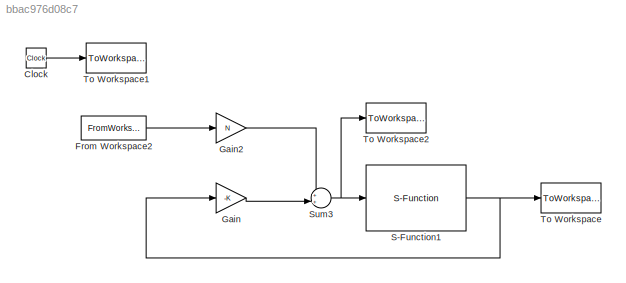
MODEL slx_bbac976d08c7
KIND model
BLOCK [Clock] Clock
BLOCK [FromWorkspace] From Workspace2
  SampleTime = 0
  VariableName = setPos
  ZeroCross = on
BLOCK [Gain] Gain
  Gain = -K
  Multiplication = Matrix(K*u)
  OutDataTypeStr = Inherit: Inherit via internal rule
  ParamDataTypeStr = Inherit: Inherit via internal rule
  SaturateOnIntegerOverflow = off
BLOCK [Gain] Gain2
  Gain = N
  OutDataTypeStr = Inherit: Inherit via internal rule
  ParamDataTypeStr = Inherit: Inherit via internal rule
  SaturateOnIntegerOverflow = off
BLOCK [S-Function] S-Function1
  EnableBusSupport = off
  FunctionName = objModel
  Parameters = state0,params,modelSelect
  Ports = [1, 1]
BLOCK [Sum] Sum3
  IconShape = round
  InputSameDT = off
  Inputs = ++|
  OutDataTypeStr = Inherit: Inherit via internal rule
  Ports = [2, 1]
  SaturateOnIntegerOverflow = off
BLOCK [ToWorkspace] To Workspace
  MaxDataPoints = inf
  Ports = [1]
  SampleTime = -1
  VariableName = y
BLOCK [ToWorkspace] To Workspace1
  MaxDataPoints = inf
  Ports = [1]
  SampleTime = -1
  VariableName = t
BLOCK [ToWorkspace] To Workspace2
  MaxDataPoints = inf
  Ports = [1]
  SampleTime = -1
  VariableName = u
LINE Clock:1 -> To Workspace1:1
LINE From Workspace2:1 -> Gain2:1
LINE Gain2:1 -> Sum3:1
LINE Gain:1 -> Sum3:2
NET S-Function1:1 -> Gain:1, To Workspace:1
NET Sum3:1 -> S-Function1:1, To Workspace2:1
note: NET lines group one-source signal fan-out (src -> all destinations, sorted); 1:1 wires keep LINE
